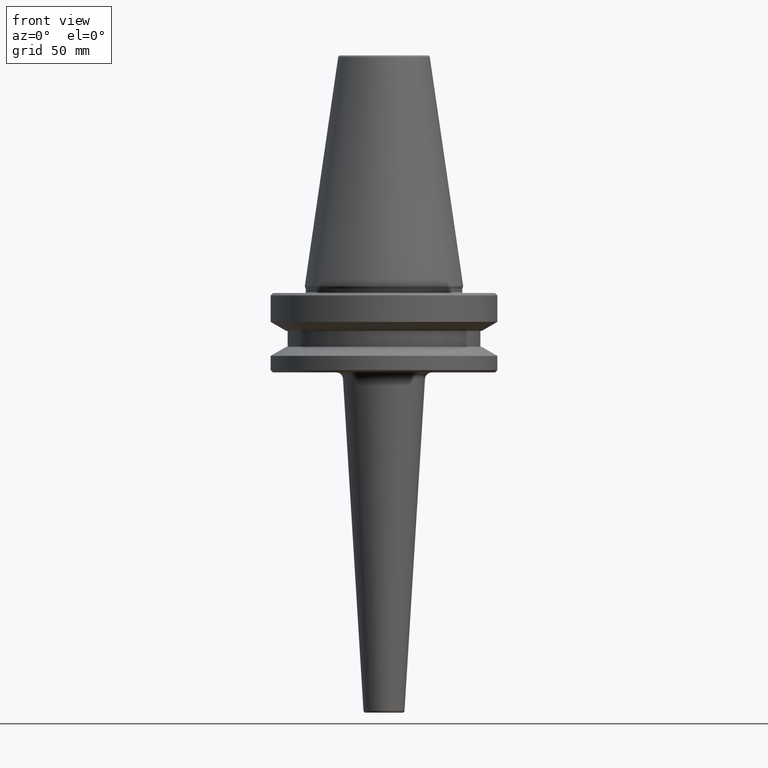
[diagram: clean part render]
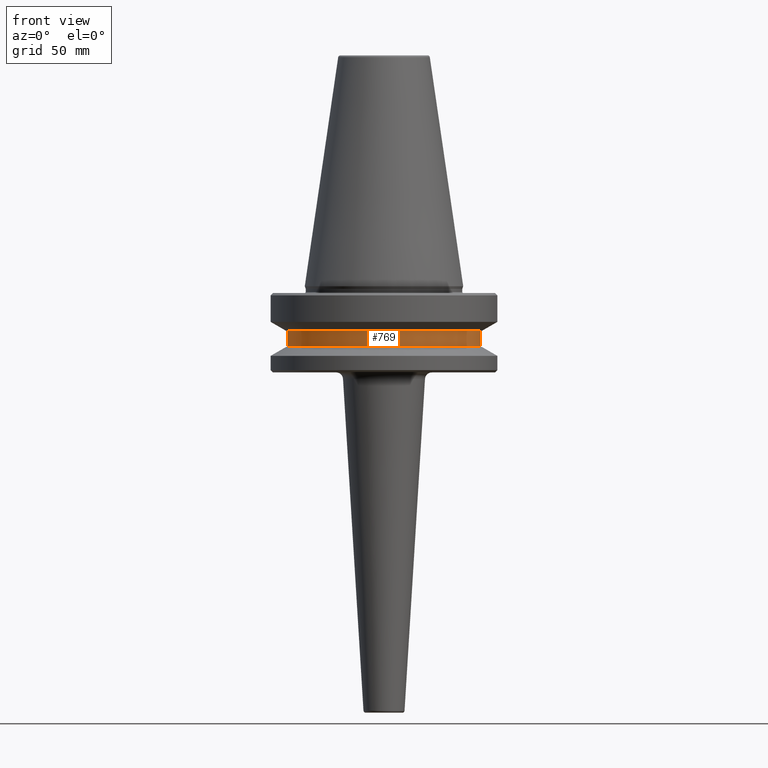
[diagram: same view with one face highlighted and labeled with its STEP entity id]
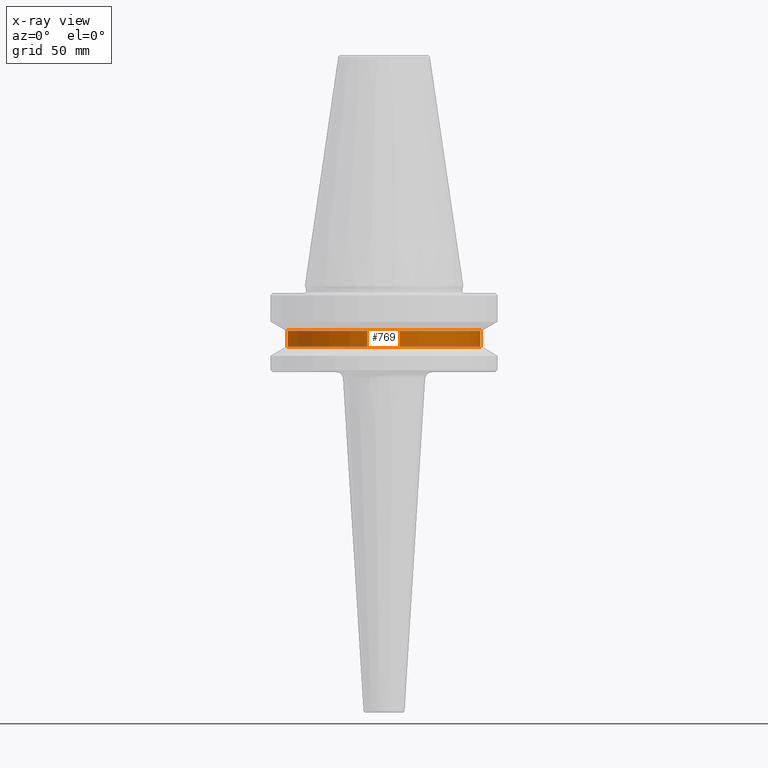
[diagram: x-ray of the same camera — body ghosted, the highlighted face saturated]
A machine part, front view. The second image highlights one B-rep face of the part: STEP entity #769.
The next image is the same camera in x-ray: the body ghosted, the highlighted face saturated — about 0% of this face is hidden behind the body in this view.
In plain terms, the highlighted cylindrical surface (partial cylindrical patch) has radius 42.5 mm, axis along (-0, -0, 1).
Its self-contained STEP definition (entity closure, byte-faithful):
#17 = CIRCLE ( 'NONE', #932, 42.50000000000000000 ) ;
#18 = DIRECTION ( 'NONE',  ( 1.000000000000000000, 0.0000000000000000000, 0.0000000000000000000 ) ) ;
#81 = CARTESIAN_POINT ( 'NONE',  ( 42.50000000000000000, 0.0000000000000000000, -26.69999999999998900 ) ) ;
#92 = DIRECTION ( 'NONE',  ( -0.0000000000000000000, -0.0000000000000000000, 1.000000000000000000 ) ) ;
#96 = ORIENTED_EDGE ( 'NONE', *, *, #885, .F. ) ;
#100 = EDGE_LOOP ( 'NONE', ( #753, #985, #169, #96 ) ) ;
#110 = DIRECTION ( 'NONE',  ( -0.0000000000000000000, -0.0000000000000000000, 1.000000000000000000 ) ) ;
#169 = ORIENTED_EDGE ( 'NONE', *, *, #178, .T. ) ;
#173 = DIRECTION ( 'NONE',  ( -0.0000000000000000000, -0.0000000000000000000, 1.000000000000000000 ) ) ;
#176 = FACE_OUTER_BOUND ( 'NONE', #100, .T. ) ;
#178 = EDGE_CURVE ( 'NONE', #927, #805, #699, .T. ) ;
#211 = AXIS2_PLACEMENT_3D ( 'NONE', #938, #173, #18 ) ;
#230 = EDGE_CURVE ( 'NONE', #615, #737, #628, .T. ) ;
#255 = CARTESIAN_POINT ( 'NONE',  ( 42.50000000000000000, 0.0000000000000000000, -19.70000000000001000 ) ) ;
#261 = DIRECTION ( 'NONE',  ( 1.000000000000000000, 0.0000000000000000000, 0.0000000000000000000 ) ) ;
#342 = CARTESIAN_POINT ( 'NONE',  ( 0.0000000000000000000, 0.0000000000000000000, -26.69999999999998900 ) ) ;
#370 = CYLINDRICAL_SURFACE ( 'NONE', #211, 42.50000000000000000 ) ;
#372 = VECTOR ( 'NONE', #92, 1000.000000000000000 ) ;
#493 = CARTESIAN_POINT ( 'NONE',  ( -42.50000000000000000, 5.204748896376250900E-015, -26.69999999999998900 ) ) ;
#582 = CARTESIAN_POINT ( 'NONE',  ( -42.50000000000000000, 5.204748896376250900E-015, -19.70000000000001000 ) ) ;
#598 = CARTESIAN_POINT ( 'NONE',  ( 0.0000000000000000000, 0.0000000000000000000, -19.70000000000001000 ) ) ;
#615 = VERTEX_POINT ( 'NONE', #493 ) ;
#628 = LINE ( 'NONE', #674, #372 ) ;
#648 = CARTESIAN_POINT ( 'NONE',  ( 42.50000000000000000, 0.0000000000000000000, 124.5046326327850600 ) ) ;
#660 = AXIS2_PLACEMENT_3D ( 'NONE', #598, #110, #670 ) ;
#670 = DIRECTION ( 'NONE',  ( 1.000000000000000000, 0.0000000000000000000, 0.0000000000000000000 ) ) ;
#674 = CARTESIAN_POINT ( 'NONE',  ( -42.50000000000000000, 5.204748896376250900E-015, 124.5046326327850600 ) ) ;
#676 = VECTOR ( 'NONE', #695, 1000.000000000000000 ) ;
#695 = DIRECTION ( 'NONE',  ( -0.0000000000000000000, -0.0000000000000000000, 1.000000000000000000 ) ) ;
#699 = LINE ( 'NONE', #648, #676 ) ;
#737 = VERTEX_POINT ( 'NONE', #582 ) ;
#746 = EDGE_CURVE ( 'NONE', #615, #927, #17, .T. ) ;
#753 = ORIENTED_EDGE ( 'NONE', *, *, #230, .F. ) ;
#769 = ADVANCED_FACE ( 'NONE', ( #176 ), #370, .T. ) ;
#805 = VERTEX_POINT ( 'NONE', #255 ) ;
#817 = DIRECTION ( 'NONE',  ( -0.0000000000000000000, -0.0000000000000000000, 1.000000000000000000 ) ) ;
#885 = EDGE_CURVE ( 'NONE', #737, #805, #942, .T. ) ;
#927 = VERTEX_POINT ( 'NONE', #81 ) ;
#932 = AXIS2_PLACEMENT_3D ( 'NONE', #342, #817, #261 ) ;
#938 = CARTESIAN_POINT ( 'NONE',  ( 0.0000000000000000000, 0.0000000000000000000, 124.5046326327850600 ) ) ;
#942 = CIRCLE ( 'NONE', #660, 42.50000000000000000 ) ;
#985 = ORIENTED_EDGE ( 'NONE', *, *, #746, .T. ) ;